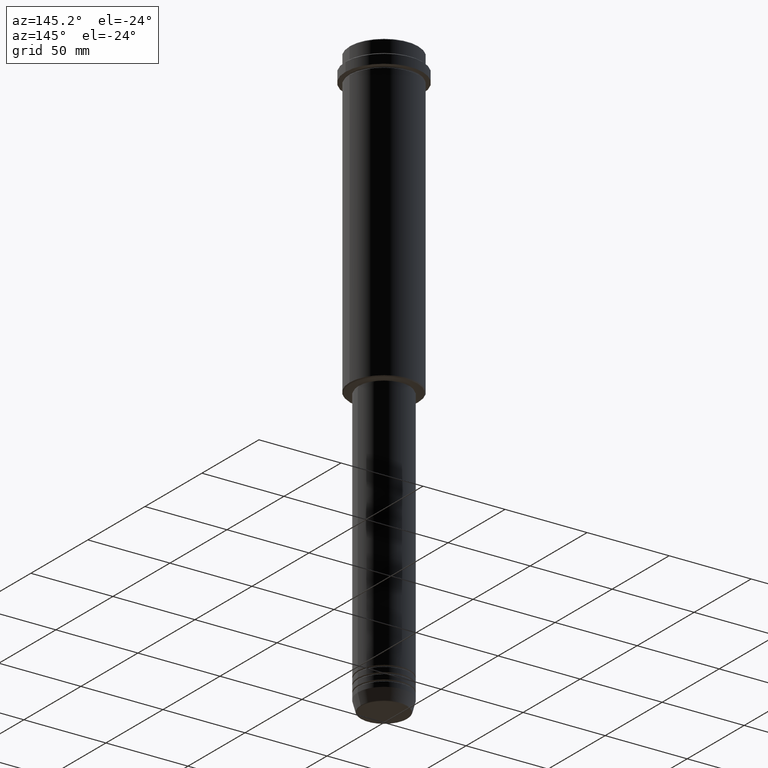
[diagram: clean part render]
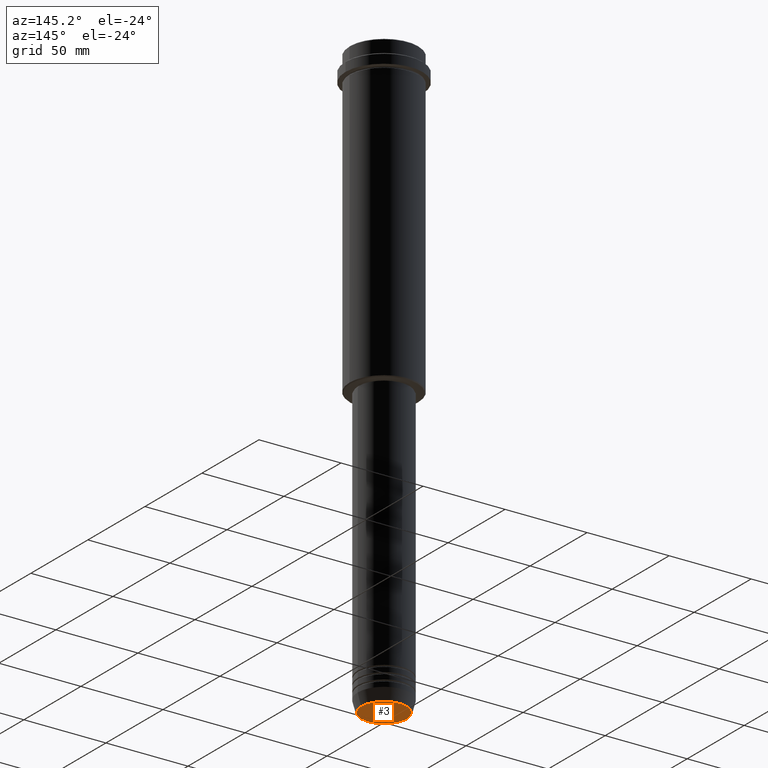
[diagram: same view with one face highlighted and labeled with its STEP entity id]
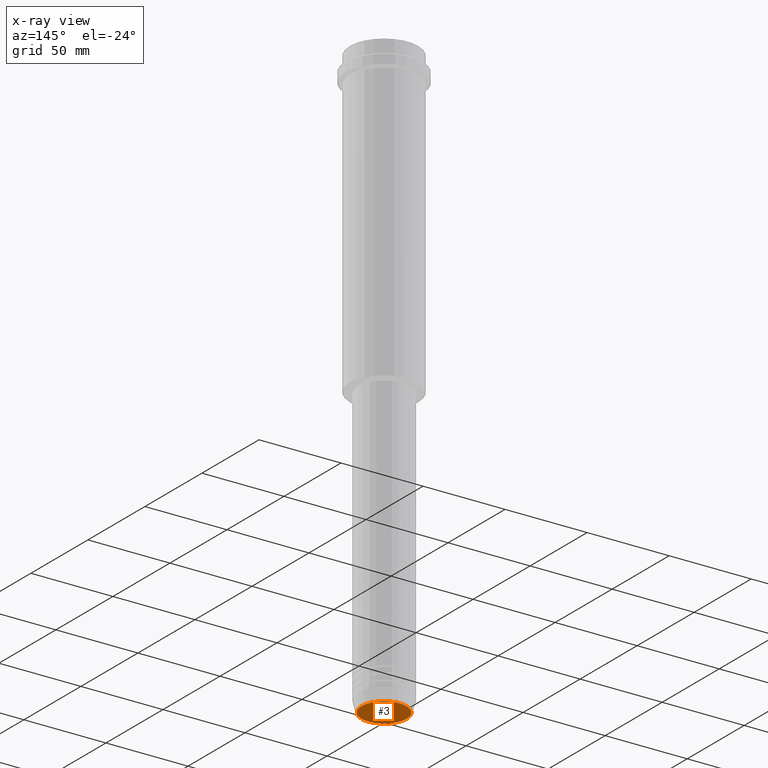
[diagram: x-ray of the same camera — body ghosted, the highlighted face saturated]
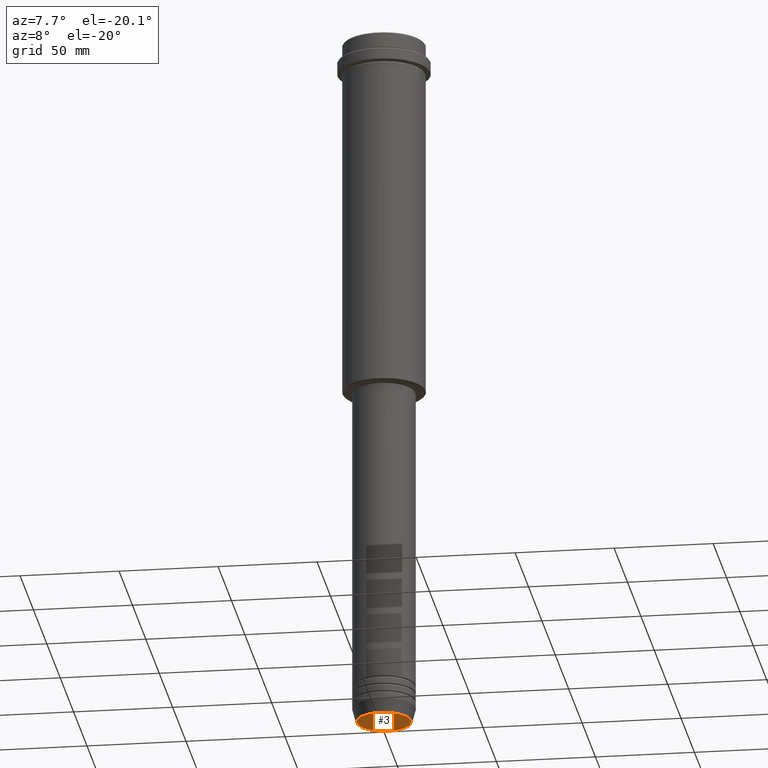
[diagram: same view with one face highlighted and labeled with its STEP entity id]
A machine part, auxiliary view. The second image highlights one B-rep face of the part: STEP entity #3.
The next image is the same camera in x-ray: the body ghosted, the highlighted face saturated — about 0% of this face is hidden behind the body in this view.
A second angle (auxiliary view) of the same face is appended — the face is thin or edge-on in the first view.
In plain terms, the highlighted planar face has unit normal (0, -0, 1).
Its self-contained STEP definition (entity closure, byte-faithful):
#3 = ADVANCED_FACE ( 'NONE', ( #474 ), #1384, .F. ) ;
#34 = CARTESIAN_POINT ( 'NONE',  ( 0.000000000000000000, 0.000000000000000000, -360.0000000000000000 ) ) ;
#53 = EDGE_CURVE ( 'NONE', #1135, #496, #871, .T. ) ;
#168 = DIRECTION ( 'NONE',  ( 0.000000000000000000, 0.000000000000000000, -1.000000000000000000 ) ) ;
#184 = DIRECTION ( 'NONE',  ( 1.000000000000000000, 0.000000000000000000, 0.000000000000000000 ) ) ;
#298 = AXIS2_PLACEMENT_3D ( 'NONE', #624, #1285, #732 ) ;
#474 = FACE_OUTER_BOUND ( 'NONE', #928, .T. ) ;
#496 = VERTEX_POINT ( 'NONE', #1058 ) ;
#499 = EDGE_CURVE ( 'NONE', #496, #1135, #899, .T. ) ;
#512 = AXIS2_PLACEMENT_3D ( 'NONE', #34, #916, #184 ) ;
#599 = DIRECTION ( 'NONE',  ( 1.000000000000000000, 0.000000000000000000, 0.000000000000000000 ) ) ;
#624 = CARTESIAN_POINT ( 'NONE',  ( 0.000000000000000000, 0.000000000000000000, -360.0000000000000000 ) ) ;
#732 = DIRECTION ( 'NONE',  ( 1.000000000000000000, 0.000000000000000000, 0.000000000000000000 ) ) ;
#769 = CARTESIAN_POINT ( 'NONE',  ( 13.74069215899265828, 0.000000000000000000, -360.0000000000000000 ) ) ;
#871 = CIRCLE ( 'NONE', #1103, 13.74069215899265828 ) ;
#899 = CIRCLE ( 'NONE', #298, 13.74069215899265828 ) ;
#916 = DIRECTION ( 'NONE',  ( 0.000000000000000000, -0.000000000000000000, 1.000000000000000000 ) ) ;
#928 = EDGE_LOOP ( 'NONE', ( #957, #1310 ) ) ;
#957 = ORIENTED_EDGE ( 'NONE', *, *, #53, .T. ) ;
#1058 = CARTESIAN_POINT ( 'NONE',  ( -13.74069215899265828, 1.712322416342415986E-15, -360.0000000000000000 ) ) ;
#1103 = AXIS2_PLACEMENT_3D ( 'NONE', #1148, #168, #599 ) ;
#1135 = VERTEX_POINT ( 'NONE', #769 ) ;
#1148 = CARTESIAN_POINT ( 'NONE',  ( 0.000000000000000000, 0.000000000000000000, -360.0000000000000000 ) ) ;
#1285 = DIRECTION ( 'NONE',  ( 0.000000000000000000, 0.000000000000000000, -1.000000000000000000 ) ) ;
#1310 = ORIENTED_EDGE ( 'NONE', *, *, #499, .T. ) ;
#1384 = PLANE ( 'NONE',  #512 ) ;